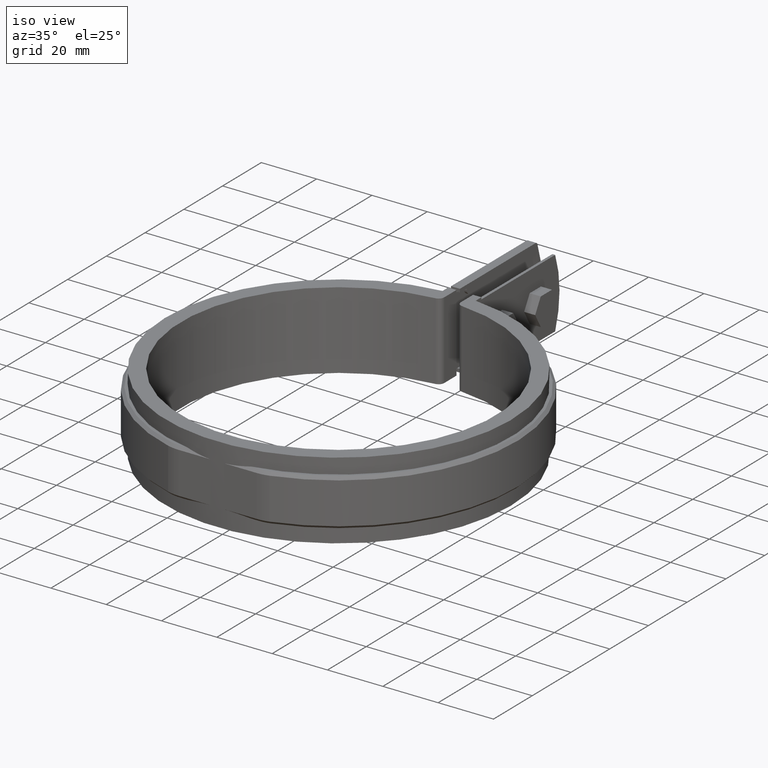
[diagram: clean part render]
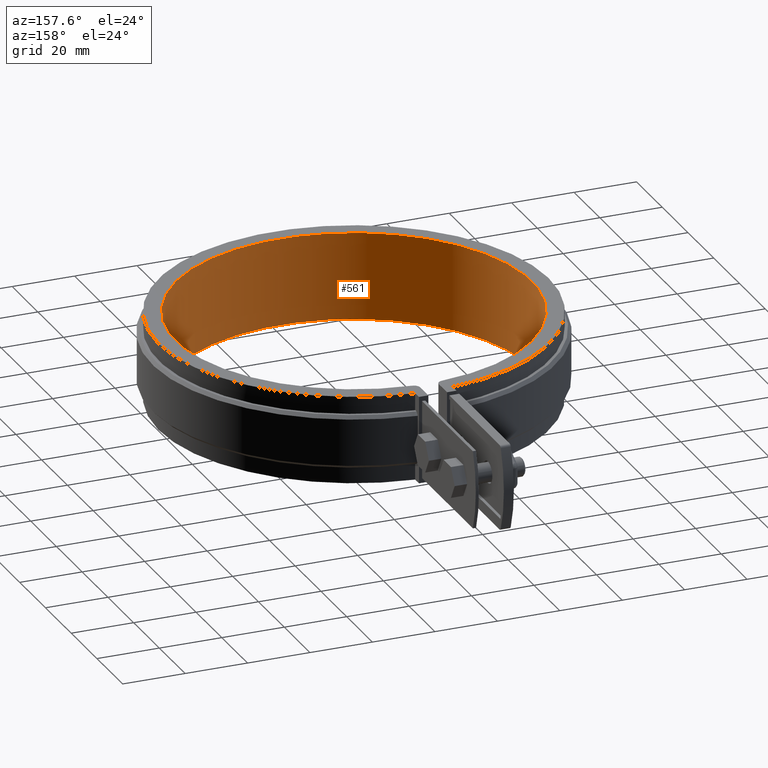
[diagram: tour spotlight — one face highlighted and labeled with its STEP entity id]
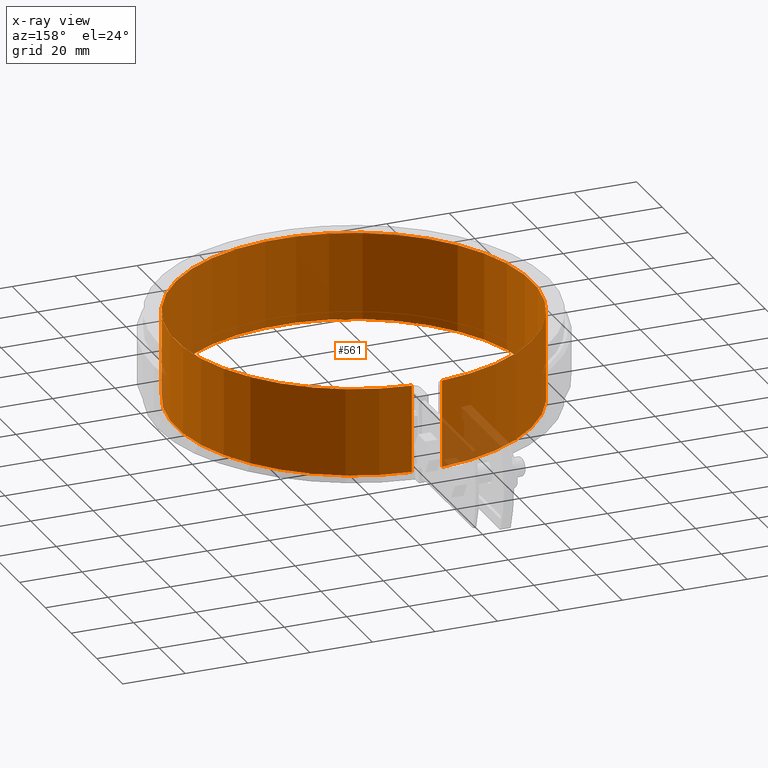
[diagram: x-ray of the same camera — body ghosted, this tour face saturated]
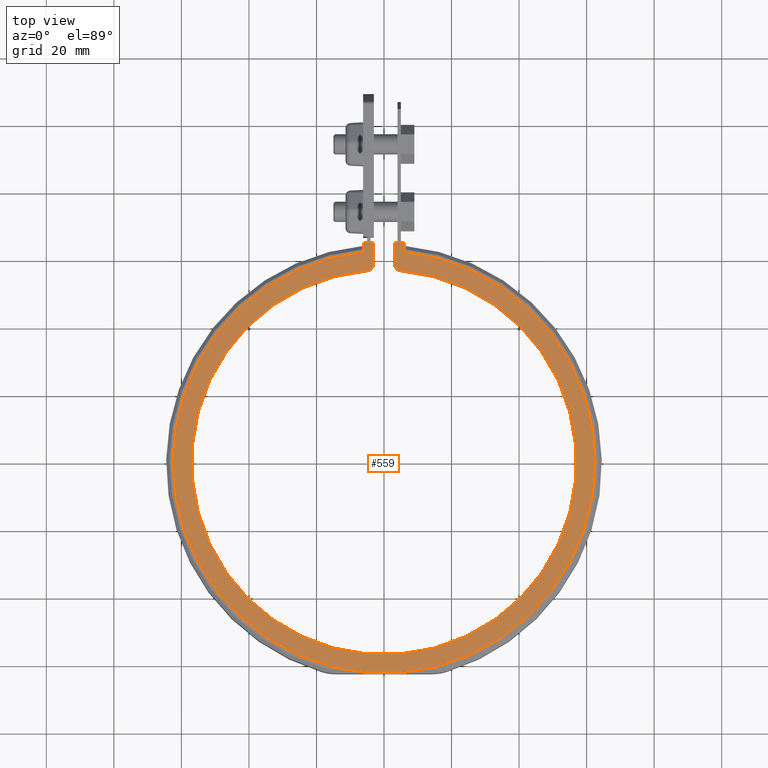
[diagram: tour spotlight — one face highlighted and labeled with its STEP entity id]
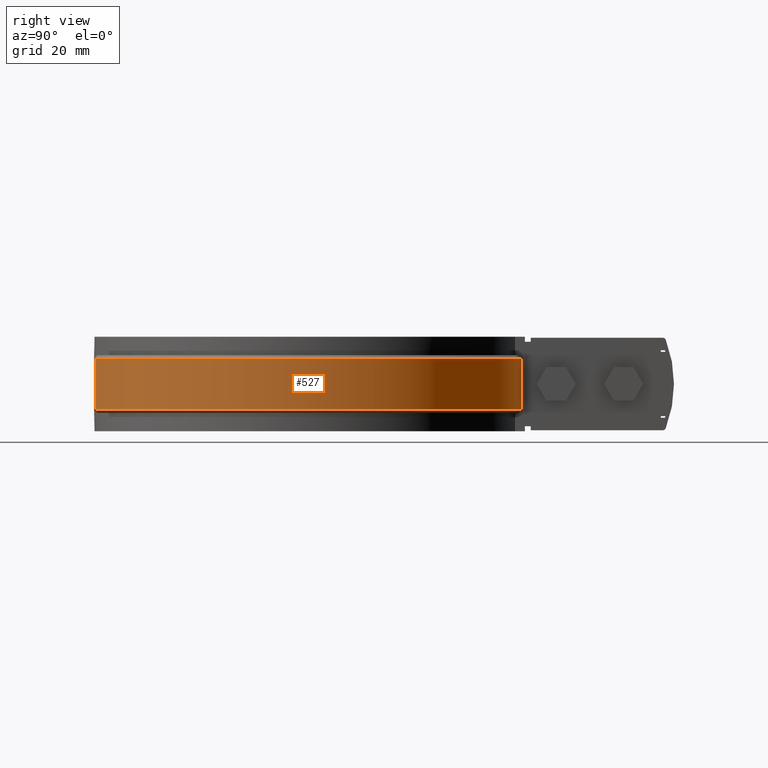
[diagram: tour spotlight — one face highlighted and labeled with its STEP entity id]
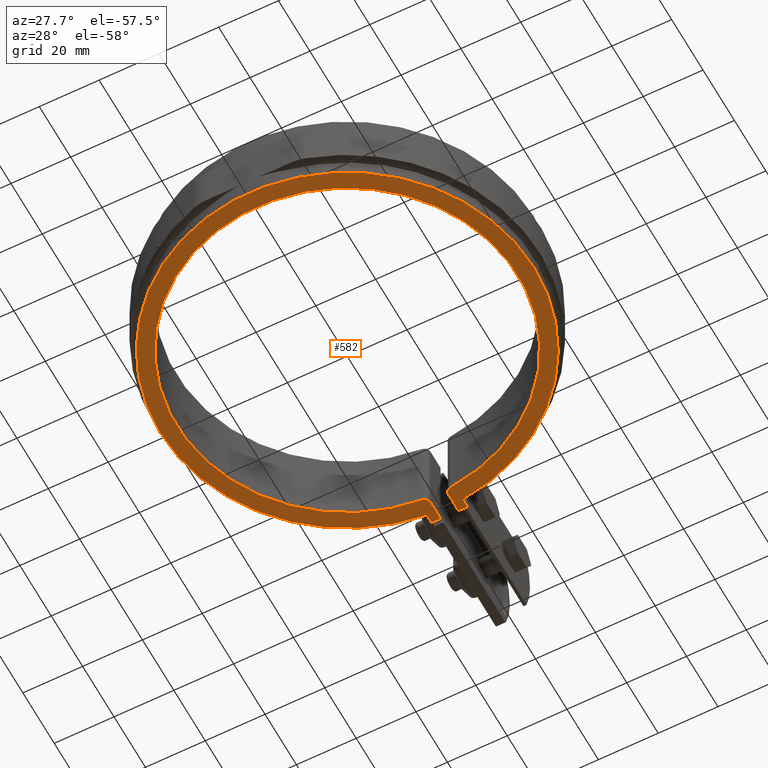
[diagram: tour spotlight — one face highlighted and labeled with its STEP entity id]
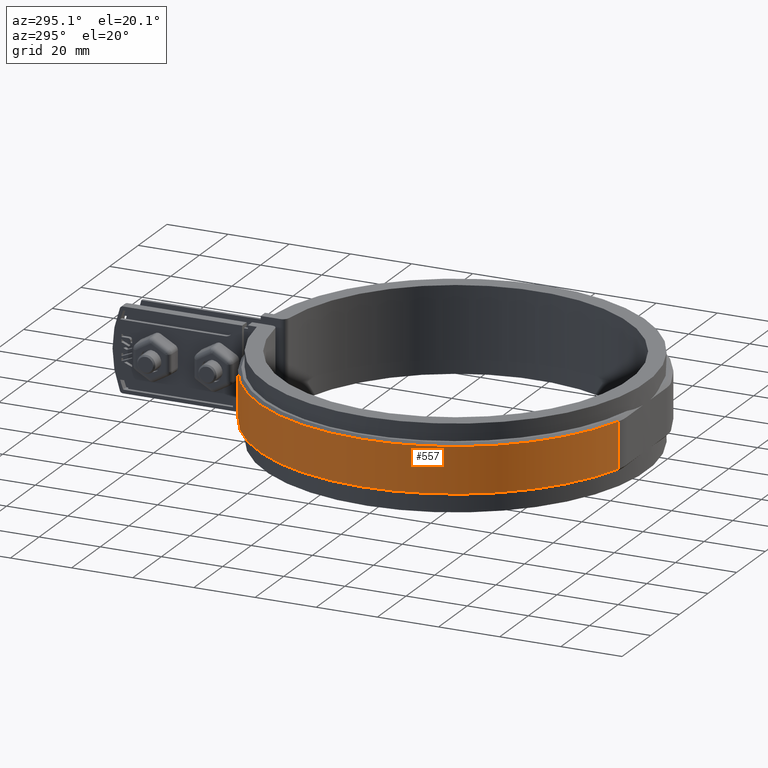
[diagram: tour spotlight — one face highlighted and labeled with its STEP entity id]
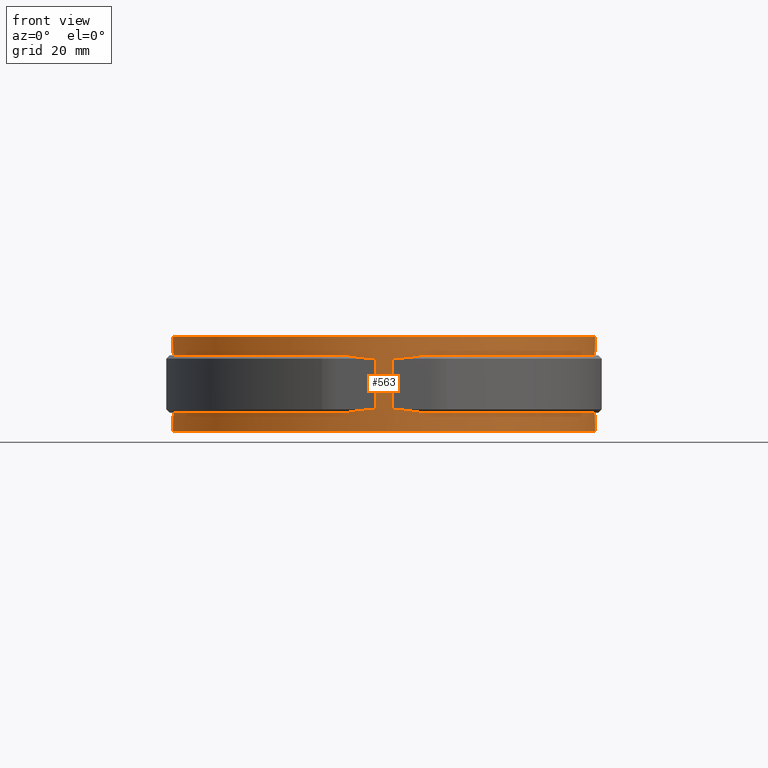
[diagram: tour spotlight — one face highlighted and labeled with its STEP entity id]
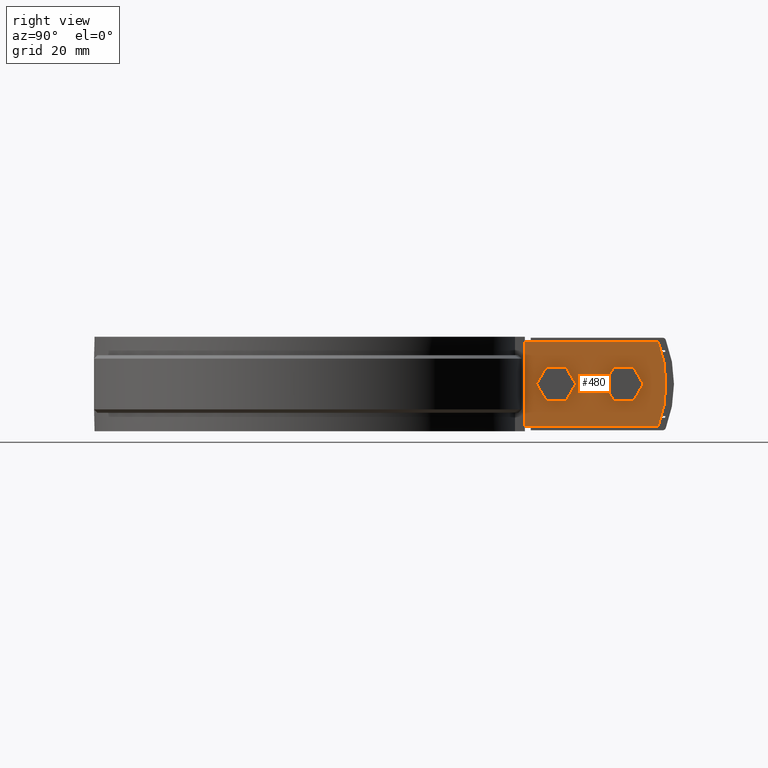
[diagram: tour spotlight — one face highlighted and labeled with its STEP entity id]
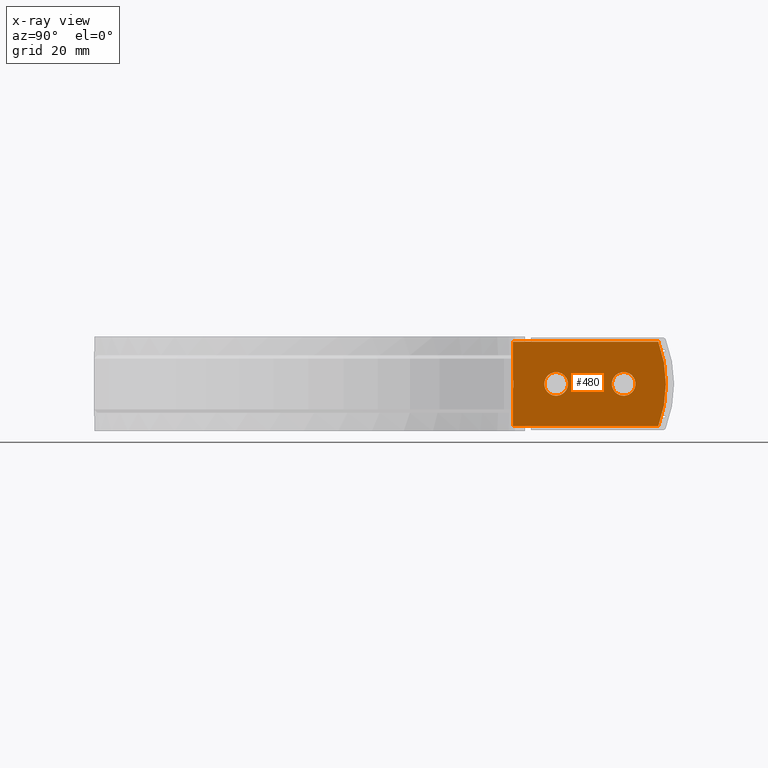
[diagram: x-ray of the same camera — body ghosted, this tour face saturated]
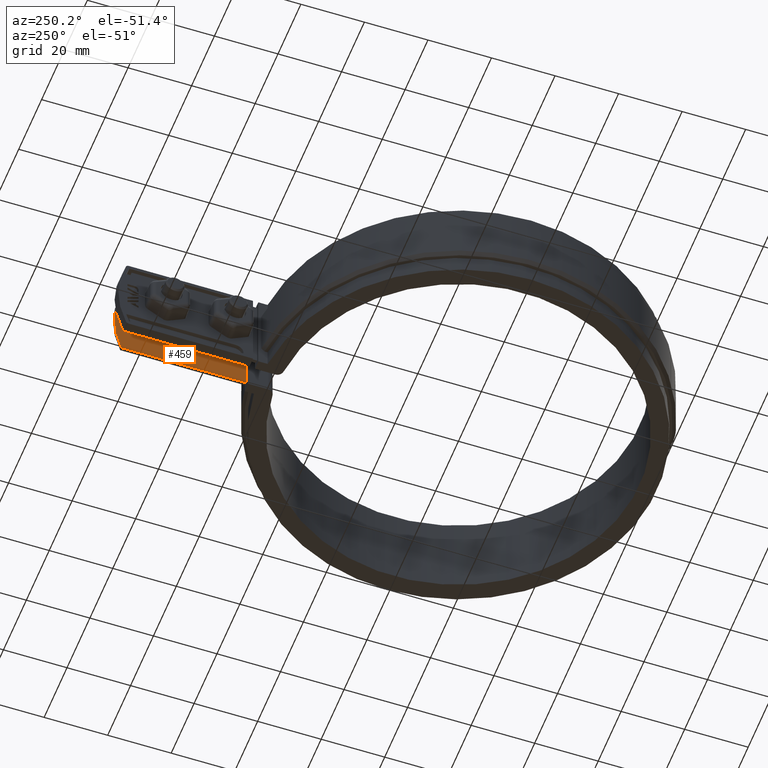
[diagram: tour spotlight — one face highlighted and labeled with its STEP entity id]
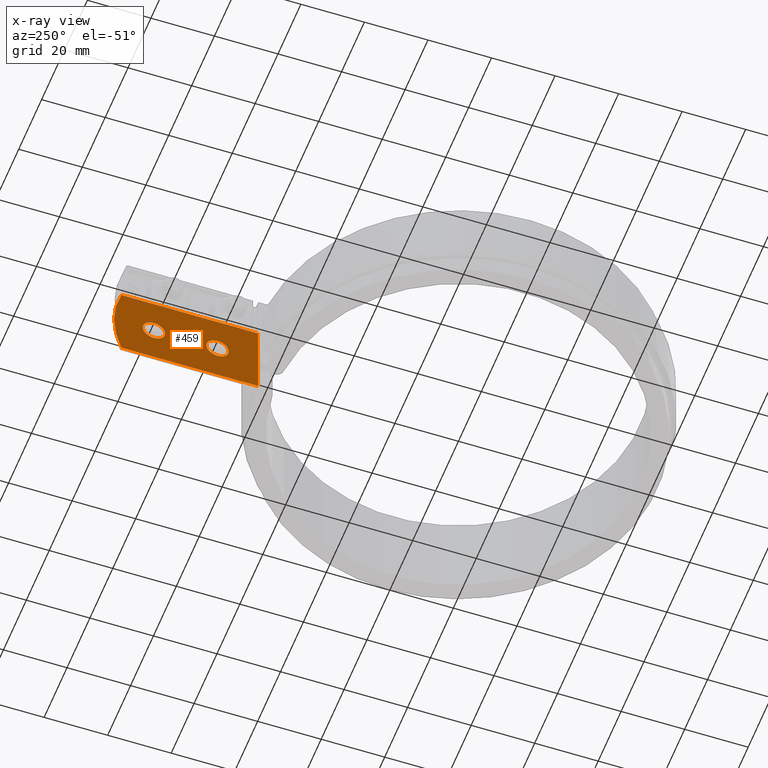
[diagram: x-ray of the same camera — body ghosted, this tour face saturated]
A machine part: a face-by-face anatomy tour. The part has 355 B-rep faces; the first image is the clean iso view, then the 8 largest visible faces are spotlighted one at a time (largest first), each with its STEP entity span.

Face 1 — auxiliary view, entity #561. An x-ray twin of the same camera follows (body ghosted, this face saturated) — the face is partly hidden behind the body. In plain terms, the highlighted cylindrical surface (partial cylindrical patch) has radius 57 mm, axis along (0, 0, 1).
Definition (entity closure, byte-faithful):
#561 = ADVANCED_FACE( '', ( #1035 ), #1036, .F. );
#1035 = FACE_OUTER_BOUND( '', #2279, .T. );
#1036 = CYLINDRICAL_SURFACE( '', #2280, 57.0000000000000 );
#2279 = EDGE_LOOP( '', ( #5008, #5009, #5010, #5011 ) );
#2280 = AXIS2_PLACEMENT_3D( '', #5012, #5013, #5014 );
#5008 = ORIENTED_EDGE( '', *, *, #7363, .F. );
#5009 = ORIENTED_EDGE( '', *, *, #7288, .F. );
#5010 = ORIENTED_EDGE( '', *, *, #7367, .T. );
#5011 = ORIENTED_EDGE( '', *, *, #7368, .T. );
#5012 = CARTESIAN_POINT( '', ( 2.60208521396521E-015, 3.46944695195361E-014, -14.0000000000000 ) );
#5013 = DIRECTION( '', ( 0.000000000000000, 0.000000000000000, 1.00000000000000 ) );
#5014 = DIRECTION( '', ( -0.0847457627118643, -0.996402607233835, 0.000000000000000 ) );
#7288 = EDGE_CURVE( '', #8428, #8426, #8430, .T. );
#7363 = EDGE_CURVE( '', #8426, #8544, #8545, .T. );
#7367 = EDGE_CURVE( '', #8428, #8549, #8550, .T. );
#7368 = EDGE_CURVE( '', #8549, #8544, #8551, .T. );
#8426 = VERTEX_POINT( '', #12017 );
#8428 = VERTEX_POINT( '', #12019 );
#8430 = LINE( '', #12021, #12022 );
#8544 = VERTEX_POINT( '', #12305 );
#8545 = CIRCLE( '', #12306, 57.0000000000000 );
#8549 = VERTEX_POINT( '', #12312 );
#8550 = CIRCLE( '', #12313, 57.0000000000000 );
#8551 = LINE( '', #12314, #12315 );
#12017 = CARTESIAN_POINT( '', ( 4.83050847457627, 56.7949486123287, 14.0000000000000 ) );
#12019 = CARTESIAN_POINT( '', ( 4.83050847457627, 56.7949486123287, -14.0000000000000 ) );
#12021 = CARTESIAN_POINT( '', ( 4.83050847457626, 56.7949486123287, -14.0000000000000 ) );
#12022 = VECTOR( '', #14166, 1000.00000000000 );
#12305 = CARTESIAN_POINT( '', ( -4.83050847457620, 56.7949486123287, 14.0000000000000 ) );
#12306 = AXIS2_PLACEMENT_3D( '', #14249, #14250, #14251 );
#12312 = CARTESIAN_POINT( '', ( -4.83050847457620, 56.7949486123287, -14.0000000000000 ) );
#12313 = AXIS2_PLACEMENT_3D( '', #14257, #14258, #14259 );
#12314 = CARTESIAN_POINT( '', ( -4.83050847457618, 56.7949486123287, -14.0000000000000 ) );
#12315 = VECTOR( '', #14260, 1000.00000000000 );
#14166 = DIRECTION( '', ( 0.000000000000000, 0.000000000000000, 1.00000000000000 ) );
#14249 = CARTESIAN_POINT( '', ( 2.60208521396521E-015, 3.46944695195361E-014, 14.0000000000000 ) );
#14250 = DIRECTION( '', ( 0.000000000000000, 0.000000000000000, -1.00000000000000 ) );
#14251 = DIRECTION( '', ( -1.00000000000000, 0.000000000000000, 0.000000000000000 ) );
#14257 = CARTESIAN_POINT( '', ( 2.60208521396521E-015, 3.46944695195361E-014, -14.0000000000000 ) );
#14258 = DIRECTION( '', ( 0.000000000000000, 0.000000000000000, -1.00000000000000 ) );
#14259 = DIRECTION( '', ( -1.00000000000000, 0.000000000000000, 0.000000000000000 ) );
#14260 = DIRECTION( '', ( 0.000000000000000, 0.000000000000000, 1.00000000000000 ) );

Face 2 — top view, entity #559. In plain terms, the highlighted planar face has unit normal (0, 0, -1).
Definition (entity closure, byte-faithful):
#559 = ADVANCED_FACE( '', ( #1031 ), #1032, .F. );
#1031 = FACE_OUTER_BOUND( '', #2275, .T. );
#1032 = PLANE( '', #2276 );
#2275 = EDGE_LOOP( '', ( #4988, #4989, #4990, #4991, #4992, #4993, #4994, #4995, #4996, #4997 ) );
#2276 = AXIS2_PLACEMENT_3D( '', #4998, #4999, #5000 );
#4988 = ORIENTED_EDGE( '', *, *, #7358, .T. );
#4989 = ORIENTED_EDGE( '', *, *, #7310, .T. );
#4990 = ORIENTED_EDGE( '', *, *, #7359, .T. );
#4991 = ORIENTED_EDGE( '', *, *, #7360, .T. );
#4992 = ORIENTED_EDGE( '', *, *, #7361, .T. );
#4993 = ORIENTED_EDGE( '', *, *, #7362, .T. );
#4994 = ORIENTED_EDGE( '', *, *, #7242, .T. );
#4995 = ORIENTED_EDGE( '', *, *, #7286, .T. );
#4996 = ORIENTED_EDGE( '', *, *, #7363, .T. );
#4997 = ORIENTED_EDGE( '', *, *, #7364, .T. );
#4998 = CARTESIAN_POINT( '', ( 5.23473201317391, 60.6634495591627, 14.0000000000000 ) );
#4999 = DIRECTION( '', ( 0.000000000000000, 0.000000000000000, -1.00000000000000 ) );
#5000 = DIRECTION( '', ( 0.000000000000000, -1.00000000000000, 0.000000000000000 ) );
#7242 = EDGE_CURVE( '', #8341, #8342, #8343, .F. );
#7286 = EDGE_CURVE( '', #8342, #8426, #8427, .F. );
#7310 = EDGE_CURVE( '', #8464, #8465, #8466, .F. );
#7358 = EDGE_CURVE( '', #8535, #8464, #8536, .F. );
#7359 = EDGE_CURVE( '', #8465, #8537, #8538, .F. );
#7360 = EDGE_CURVE( '', #8537, #8539, #8540, .F. );
#7361 = EDGE_CURVE( '', #8539, #8541, #8542, .F. );
#7362 = EDGE_CURVE( '', #8541, #8341, #8543, .F. );
#7363 = EDGE_CURVE( '', #8426, #8544, #8545, .T. );
#7364 = EDGE_CURVE( '', #8544, #8535, #8546, .F. );
#8341 = VERTEX_POINT( '', #11488 );
#8342 = VERTEX_POINT( '', #11489 );
#8343 = LINE( '', #11490, #11491 );
#8426 = VERTEX_POINT( '', #12017 );
#8427 = CIRCLE( '', #12018, 2.00000000000000 );
#8464 = VERTEX_POINT( '', #12108 );
#8465 = VERTEX_POINT( '', #12109 );
#8466 = LINE( '', #12110, #12111 );
#8535 = VERTEX_POINT( '', #12292 );
#8536 = LINE( '', #12293, #12294 );
#8537 = VERTEX_POINT( '', #12295 );
#8538 = LINE( '', #12296, #12297 );
#8539 = VERTEX_POINT( '', #12298 );
#8540 = CIRCLE( '', #12299, 62.5000000000000 );
#8541 = VERTEX_POINT( '', #12300 );
#8542 = LINE( '', #12301, #12302 );
#8543 = LINE( '', #12303, #12304 );
#8544 = VERTEX_POINT( '', #12305 );
#8545 = CIRCLE( '', #12306, 57.0000000000000 );
#8546 = CIRCLE( '', #12307, 2.00000000000000 );
#11488 = CARTESIAN_POINT( '', ( 3.00000000000000, 65.1500000000000, 14.0000000000000 ) );
#11489 = CARTESIAN_POINT( '', ( 3.00000000000000, 58.7877538267963, 14.0000000000000 ) );
#11490 = CARTESIAN_POINT( '', ( 3.00000000000000, 60.6634495591627, 14.0000000000000 ) );
#11491 = VECTOR( '', #14110, 1000.00000000000 );
#12017 = CARTESIAN_POINT( '', ( 4.83050847457627, 56.7949486123287, 14.0000000000000 ) );
#12018 = AXIS2_PLACEMENT_3D( '', #14160, #14161, #14162 );
#12108 = CARTESIAN_POINT( '', ( -2.99999999999995, 65.1500000000000, 14.0000000000000 ) );
#12109 = CARTESIAN_POINT( '', ( -6.00000000000000, 65.1500000000000, 14.0000000000000 ) );
#12110 = CARTESIAN_POINT( '', ( 5.23473201317391, 65.1500000000000, 14.0000000000000 ) );
#12111 = VECTOR( '', #14185, 1000.00000000000 );
#12292 = CARTESIAN_POINT( '', ( -2.99999999999995, 58.7877538267963, 14.0000000000000 ) );
#12293 = CARTESIAN_POINT( '', ( -2.99999999999995, 60.6634495591627, 14.0000000000000 ) );
#12294 = VECTOR( '', #14242, 1000.00000000000 );
#12295 = CARTESIAN_POINT( '', ( -6.00000000000000, 62.2113333726259, 14.0000000000000 ) );
#12296 = CARTESIAN_POINT( '', ( -6.00000000000000, 60.6634495591627, 14.0000000000000 ) );
#12297 = VECTOR( '', #14243, 1000.00000000000 );
#12298 = CARTESIAN_POINT( '', ( 6.00000000000000, 62.2113333726259, 14.0000000000000 ) );
#12299 = AXIS2_PLACEMENT_3D( '', #14244, #14245, #14246 );
#12300 = CARTESIAN_POINT( '', ( 6.00000000000000, 65.1500000000000, 14.0000000000000 ) );
#12301 = CARTESIAN_POINT( '', ( 6.00000000000000, 60.6634495591627, 14.0000000000000 ) );
#12302 = VECTOR( '', #14247, 1000.00000000000 );
#12303 = CARTESIAN_POINT( '', ( 5.23473201317391, 65.1500000000000, 14.0000000000000 ) );
#12304 = VECTOR( '', #14248, 1000.00000000000 );
#12305 = CARTESIAN_POINT( '', ( -4.83050847457620, 56.7949486123287, 14.0000000000000 ) );
#12306 = AXIS2_PLACEMENT_3D( '', #14249, #14250, #14251 );
#12307 = AXIS2_PLACEMENT_3D( '', #14252, #14253, #14254 );
#14110 = DIRECTION( '', ( 6.93889390390723E-017, 1.00000000000000, 0.000000000000000 ) );
#14160 = CARTESIAN_POINT( '', ( 5.00000000000000, 58.7877538267963, 14.0000000000000 ) );
#14161 = DIRECTION( '', ( 0.000000000000000, 0.000000000000000, -1.00000000000000 ) );
#14162 = DIRECTION( '', ( -1.00000000000000, 0.000000000000000, 0.000000000000000 ) );
#14185 = DIRECTION( '', ( 1.00000000000000, 0.000000000000000, 0.000000000000000 ) );
#14242 = DIRECTION( '', ( -6.93889390390723E-017, -1.00000000000000, 0.000000000000000 ) );
#14243 = DIRECTION( '', ( 5.55111512312578E-017, 1.00000000000000, 0.000000000000000 ) );
#14244 = CARTESIAN_POINT( '', ( -8.67361737988404E-016, -6.93889390390723E-015, 14.0000000000000 ) );
#14245 = DIRECTION( '', ( 0.000000000000000, 0.000000000000000, -1.00000000000000 ) );
#14246 = DIRECTION( '', ( -1.00000000000000, 0.000000000000000, 0.000000000000000 ) );
#14247 = DIRECTION( '', ( -5.55111512312578E-017, -1.00000000000000, 0.000000000000000 ) );
#14248 = DIRECTION( '', ( 1.00000000000000, 0.000000000000000, 0.000000000000000 ) );
#14249 = CARTESIAN_POINT( '', ( 2.60208521396521E-015, 3.46944695195361E-014, 14.0000000000000 ) );
#14250 = DIRECTION( '', ( 0.000000000000000, 0.000000000000000, -1.00000000000000 ) );
#14251 = DIRECTION( '', ( -1.00000000000000, 0.000000000000000, 0.000000000000000 ) );
#14252 = CARTESIAN_POINT( '', ( -4.99999999999995, 58.7877538267963, 14.0000000000000 ) );
#14253 = DIRECTION( '', ( 0.000000000000000, 0.000000000000000, -1.00000000000000 ) );
#14254 = DIRECTION( '', ( -1.00000000000000, 0.000000000000000, 0.000000000000000 ) );

Face 3 — right view, entity #527. In plain terms, the highlighted cylindrical surface (partial cylindrical patch) has radius 64.5 mm, axis along (0, 0, 1).
Definition (entity closure, byte-faithful):
#527 = ADVANCED_FACE( '', ( #965 ), #966, .T. );
#965 = FACE_OUTER_BOUND( '', #2008, .T. );
#966 = CYLINDRICAL_SURFACE( '', #2009, 64.5000000000000 );
#2008 = EDGE_LOOP( '', ( #4689, #4690, #4691, #4692 ) );
#2009 = AXIS2_PLACEMENT_3D( '', #4693, #4694, #4695 );
#4689 = ORIENTED_EDGE( '', *, *, #7251, .T. );
#4690 = ORIENTED_EDGE( '', *, *, #7252, .T. );
#4691 = ORIENTED_EDGE( '', *, *, #7253, .F. );
#4692 = ORIENTED_EDGE( '', *, *, #7254, .T. );
#4693 = CARTESIAN_POINT( '', ( 8.67361737988404E-016, 1.38777878078145E-014, -8.50000000000000 ) );
#4694 = DIRECTION( '', ( 0.000000000000000, 0.000000000000000, 1.00000000000000 ) );
#4695 = DIRECTION( '', ( 0.0775193798449611, 0.996990845368428, 0.000000000000000 ) );
#7251 = EDGE_CURVE( '', #8359, #8360, #8361, .F. );
#7252 = EDGE_CURVE( '', #8360, #8362, #8363, .T. );
#7253 = EDGE_CURVE( '', #8364, #8362, #8365, .T. );
#7254 = EDGE_CURVE( '', #8364, #8359, #8366, .T. );
#8359 = VERTEX_POINT( '', #11512 );
#8360 = VERTEX_POINT( '', #11513 );
#8361 = LINE( '', #11514, #11515 );
#8362 = VERTEX_POINT( '', #11516 );
#8363 = CIRCLE( '', #11517, 64.5000000000000 );
#8364 = VERTEX_POINT( '', #11518 );
#8365 = LINE( '', #11519, #11520 );
#8366 = CIRCLE( '', #11521, 64.5000000000000 );
#11512 = CARTESIAN_POINT( '', ( 6.00000000000000, 64.2203238858230, -7.50000000000000 ) );
#11513 = CARTESIAN_POINT( '', ( 6.00000000000000, 64.2203238858230, 7.50000000000000 ) );
#11514 = CARTESIAN_POINT( '', ( 6.00000000000000, 64.2203238858230, -8.50000000000000 ) );
#11515 = VECTOR( '', #14125, 1000.00000000000 );
#11516 = CARTESIAN_POINT( '', ( 18.3698391239513, -61.8287878787879, 7.50000000000000 ) );
#11517 = AXIS2_PLACEMENT_3D( '', #14126, #14127, #14128 );
#11518 = CARTESIAN_POINT( '', ( 18.3698391239513, -61.8287878787879, -7.49999999999998 ) );
#11519 = CARTESIAN_POINT( '', ( 18.3698391239513, -61.8287878787879, -8.50000000000000 ) );
#11520 = VECTOR( '', #14129, 1000.00000000000 );
#11521 = AXIS2_PLACEMENT_3D( '', #14130, #14131, #14132 );
#14125 = DIRECTION( '', ( 0.000000000000000, 0.000000000000000, -1.00000000000000 ) );
#14126 = CARTESIAN_POINT( '', ( 8.67361737988404E-016, 1.38777878078145E-014, 7.50000000000000 ) );
#14127 = DIRECTION( '', ( 0.000000000000000, 0.000000000000000, -1.00000000000000 ) );
#14128 = DIRECTION( '', ( -1.00000000000000, 0.000000000000000, 0.000000000000000 ) );
#14129 = DIRECTION( '', ( 0.000000000000000, 0.000000000000000, 1.00000000000000 ) );
#14130 = CARTESIAN_POINT( '', ( 8.67361737988404E-016, 1.38777878078145E-014, -7.50000000000000 ) );
#14131 = DIRECTION( '', ( 0.000000000000000, 0.000000000000000, 1.00000000000000 ) );
#14132 = DIRECTION( '', ( 1.00000000000000, 0.000000000000000, 0.000000000000000 ) );

Face 4 — auxiliary view, entity #582. In plain terms, the highlighted planar face has unit normal (0, 0, -1).
Definition (entity closure, byte-faithful):
#582 = ADVANCED_FACE( '', ( #1077 ), #1078, .T. );
#1077 = FACE_OUTER_BOUND( '', #2396, .T. );
#1078 = PLANE( '', #2397 );
#2396 = EDGE_LOOP( '', ( #5186, #5187, #5188, #5189, #5190, #5191, #5192, #5193, #5194, #5195 ) );
#2397 = AXIS2_PLACEMENT_3D( '', #5196, #5197, #5198 );
#5186 = ORIENTED_EDGE( '', *, *, #7244, .F. );
#5187 = ORIENTED_EDGE( '', *, *, #7409, .F. );
#5188 = ORIENTED_EDGE( '', *, *, #7400, .F. );
#5189 = ORIENTED_EDGE( '', *, *, #7378, .F. );
#5190 = ORIENTED_EDGE( '', *, *, #7397, .F. );
#5191 = ORIENTED_EDGE( '', *, *, #7312, .F. );
#5192 = ORIENTED_EDGE( '', *, *, #7406, .F. );
#5193 = ORIENTED_EDGE( '', *, *, #7404, .F. );
#5194 = ORIENTED_EDGE( '', *, *, #7367, .F. );
#5195 = ORIENTED_EDGE( '', *, *, #7287, .F. );
#5196 = CARTESIAN_POINT( '', ( 5.23473201317391, 60.6634495591627, -14.0000000000000 ) );
#5197 = DIRECTION( '', ( 0.000000000000000, 0.000000000000000, -1.00000000000000 ) );
#5198 = DIRECTION( '', ( 0.000000000000000, -1.00000000000000, 0.000000000000000 ) );
#7244 = EDGE_CURVE( '', #8344, #8346, #8347, .T. );
#7287 = EDGE_CURVE( '', #8346, #8428, #8429, .F. );
#7312 = EDGE_CURVE( '', #8467, #8469, #8470, .T. );
#7367 = EDGE_CURVE( '', #8428, #8549, #8550, .T. );
#7378 = EDGE_CURVE( '', #8564, #8553, #8566, .F. );
#7397 = EDGE_CURVE( '', #8469, #8564, #8594, .T. );
#7400 = EDGE_CURVE( '', #8553, #8598, #8599, .T. );
#7404 = EDGE_CURVE( '', #8549, #8603, #8604, .F. );
#7406 = EDGE_CURVE( '', #8603, #8467, #8606, .T. );
#7409 = EDGE_CURVE( '', #8598, #8344, #8609, .T. );
#8344 = VERTEX_POINT( '', #11492 );
#8346 = VERTEX_POINT( '', #11495 );
#8347 = LINE( '', #11496, #11497 );
#8428 = VERTEX_POINT( '', #12019 );
#8429 = CIRCLE( '', #12020, 2.00000000000000 );
#8467 = VERTEX_POINT( '', #12112 );
#8469 = VERTEX_POINT( '', #12115 );
#8470 = LINE( '', #12116, #12117 );
#8549 = VERTEX_POINT( '', #12312 );
#8550 = CIRCLE( '', #12313, 57.0000000000000 );
#8553 = VERTEX_POINT( '', #12317 );
#8564 = VERTEX_POINT( '', #12332 );
#8566 = CIRCLE( '', #12335, 62.5000000000000 );
#8594 = LINE( '', #12427, #12428 );
#8598 = VERTEX_POINT( '', #12436 );
#8599 = LINE( '', #12437, #12438 );
#8603 = VERTEX_POINT( '', #12447 );
#8604 = CIRCLE( '', #12448, 2.00000000000000 );
#8606 = LINE( '', #12451, #12452 );
#8609 = LINE( '', #12457, #12458 );
#11492 = CARTESIAN_POINT( '', ( 3.00000000000000, 65.1500000000000, -14.0000000000000 ) );
#11495 = CARTESIAN_POINT( '', ( 3.00000000000000, 58.7877538267963, -14.0000000000000 ) );
#11496 = CARTESIAN_POINT( '', ( 3.00000000000000, 65.1500000000000, -14.0000000000000 ) );
#11497 = VECTOR( '', #14112, 1000.00000000000 );
#12019 = CARTESIAN_POINT( '', ( 4.83050847457627, 56.7949486123287, -14.0000000000000 ) );
#12020 = AXIS2_PLACEMENT_3D( '', #14163, #14164, #14165 );
#12112 = CARTESIAN_POINT( '', ( -2.99999999999995, 65.1500000000000, -14.0000000000000 ) );
#12115 = CARTESIAN_POINT( '', ( -6.00000000000000, 65.1500000000000, -14.0000000000000 ) );
#12116 = CARTESIAN_POINT( '', ( -4.99999999999999, 65.1500000000000, -14.0000000000000 ) );
#12117 = VECTOR( '', #14187, 1000.00000000000 );
#12312 = CARTESIAN_POINT( '', ( -4.83050847457620, 56.7949486123287, -14.0000000000000 ) );
#12313 = AXIS2_PLACEMENT_3D( '', #14257, #14258, #14259 );
#12317 = CARTESIAN_POINT( '', ( 6.00000000000000, 62.2113333726259, -14.0000000000000 ) );
#12332 = CARTESIAN_POINT( '', ( -6.00000000000000, 62.2113333726259, -14.0000000000000 ) );
#12335 = AXIS2_PLACEMENT_3D( '', #14278, #14279, #14280 );
#12427 = CARTESIAN_POINT( '', ( -6.00000000000000, 65.1500000000000, -14.0000000000000 ) );
#12428 = VECTOR( '', #14306, 1000.00000000000 );
#12436 = CARTESIAN_POINT( '', ( 6.00000000000000, 65.1500000000000, -14.0000000000000 ) );
#12437 = CARTESIAN_POINT( '', ( 6.00000000000000, 62.2113333726259, -14.0000000000000 ) );
#12438 = VECTOR( '', #14308, 1000.00000000000 );
#12447 = CARTESIAN_POINT( '', ( -2.99999999999995, 58.7877538267963, -14.0000000000000 ) );
#12448 = AXIS2_PLACEMENT_3D( '', #14311, #14312, #14313 );
#12451 = CARTESIAN_POINT( '', ( -2.99999999999995, 58.7877538267963, -14.0000000000000 ) );
#12452 = VECTOR( '', #14315, 1000.00000000000 );
#12457 = CARTESIAN_POINT( '', ( 6.00000000000003, 65.1500000000000, -14.0000000000000 ) );
#12458 = VECTOR( '', #14318, 1000.00000000000 );
#14112 = DIRECTION( '', ( -6.93889390390723E-017, -1.00000000000000, 0.000000000000000 ) );
#14163 = CARTESIAN_POINT( '', ( 5.00000000000000, 58.7877538267963, -14.0000000000000 ) );
#14164 = DIRECTION( '', ( 0.000000000000000, 0.000000000000000, -1.00000000000000 ) );
#14165 = DIRECTION( '', ( -1.00000000000000, 0.000000000000000, 0.000000000000000 ) );
#14187 = DIRECTION( '', ( -1.00000000000000, 0.000000000000000, 0.000000000000000 ) );
#14257 = CARTESIAN_POINT( '', ( 2.60208521396521E-015, 3.46944695195361E-014, -14.0000000000000 ) );
#14258 = DIRECTION( '', ( 0.000000000000000, 0.000000000000000, -1.00000000000000 ) );
#14259 = DIRECTION( '', ( -1.00000000000000, 0.000000000000000, 0.000000000000000 ) );
#14278 = CARTESIAN_POINT( '', ( -8.67361737988404E-016, -6.93889390390723E-015, -14.0000000000000 ) );
#14279 = DIRECTION( '', ( 0.000000000000000, 0.000000000000000, -1.00000000000000 ) );
#14280 = DIRECTION( '', ( -1.00000000000000, 0.000000000000000, 0.000000000000000 ) );
#14306 = DIRECTION( '', ( -5.55111512312578E-017, -1.00000000000000, 0.000000000000000 ) );
#14308 = DIRECTION( '', ( 5.55111512312578E-017, 1.00000000000000, 0.000000000000000 ) );
#14311 = CARTESIAN_POINT( '', ( -4.99999999999995, 58.7877538267963, -14.0000000000000 ) );
#14312 = DIRECTION( '', ( 0.000000000000000, 0.000000000000000, -1.00000000000000 ) );
#14313 = DIRECTION( '', ( -1.00000000000000, 0.000000000000000, 0.000000000000000 ) );
#14315 = DIRECTION( '', ( 6.93889390390723E-017, 1.00000000000000, 0.000000000000000 ) );
#14318 = DIRECTION( '', ( -1.00000000000000, 0.000000000000000, 0.000000000000000 ) );

Face 5 — auxiliary view, entity #557. In plain terms, the highlighted cylindrical surface (partial cylindrical patch) has radius 64.5 mm, axis along (0, 0, 1).
Definition (entity closure, byte-faithful):
#557 = ADVANCED_FACE( '', ( #1027 ), #1028, .T. );
#1027 = FACE_OUTER_BOUND( '', #2271, .T. );
#1028 = CYLINDRICAL_SURFACE( '', #2272, 64.5000000000000 );
#2271 = EDGE_LOOP( '', ( #4974, #4975, #4976, #4977 ) );
#2272 = AXIS2_PLACEMENT_3D( '', #4978, #4979, #4980 );
#4974 = ORIENTED_EDGE( '', *, *, #7356, .T. );
#4975 = ORIENTED_EDGE( '', *, *, #7355, .T. );
#4976 = ORIENTED_EDGE( '', *, *, #7357, .T. );
#4977 = ORIENTED_EDGE( '', *, *, #7317, .T. );
#4978 = CARTESIAN_POINT( '', ( -8.67361737988404E-016, 1.38777878078145E-014, -8.50000000000000 ) );
#4979 = DIRECTION( '', ( 0.000000000000000, 0.000000000000000, 1.00000000000000 ) );
#4980 = DIRECTION( '', ( -0.0775193798449611, 0.996990845368428, 0.000000000000000 ) );
#7317 = EDGE_CURVE( '', #8446, #8474, #8477, .T. );
#7355 = EDGE_CURVE( '', #8530, #8523, #8532, .T. );
#7356 = EDGE_CURVE( '', #8474, #8530, #8533, .T. );
#7357 = EDGE_CURVE( '', #8523, #8446, #8534, .T. );
#8446 = VERTEX_POINT( '', #12060 );
#8474 = VERTEX_POINT( '', #12124 );
#8477 = CIRCLE( '', #12130, 64.5000000000000 );
#8523 = VERTEX_POINT( '', #12272 );
#8530 = VERTEX_POINT( '', #12282 );
#8532 = CIRCLE( '', #12287, 64.5000000000000 );
#8533 = LINE( '', #12288, #12289 );
#8534 = LINE( '', #12290, #12291 );
#12060 = CARTESIAN_POINT( '', ( -18.3698391239513, -61.8287878787879, 7.49999999999998 ) );
#12124 = CARTESIAN_POINT( '', ( -6.00000000000000, 64.2203238858230, 7.50000000000000 ) );
#12130 = AXIS2_PLACEMENT_3D( '', #14191, #14192, #14193 );
#12272 = CARTESIAN_POINT( '', ( -18.3698391239513, -61.8287878787879, -7.50000000000000 ) );
#12282 = CARTESIAN_POINT( '', ( -6.00000000000000, 64.2203238858230, -7.50000000000000 ) );
#12287 = AXIS2_PLACEMENT_3D( '', #14237, #14238, #14239 );
#12288 = CARTESIAN_POINT( '', ( -6.00000000000000, 64.2203238858230, -8.50000000000000 ) );
#12289 = VECTOR( '', #14240, 1000.00000000000 );
#12290 = CARTESIAN_POINT( '', ( -18.3698391239513, -61.8287878787879, -8.50000000000000 ) );
#12291 = VECTOR( '', #14241, 1000.00000000000 );
#14191 = CARTESIAN_POINT( '', ( -8.67361737988404E-016, 1.38777878078145E-014, 7.50000000000000 ) );
#14192 = DIRECTION( '', ( 0.000000000000000, 0.000000000000000, -1.00000000000000 ) );
#14193 = DIRECTION( '', ( -1.00000000000000, 0.000000000000000, 0.000000000000000 ) );
#14237 = CARTESIAN_POINT( '', ( -8.67361737988404E-016, 1.38777878078145E-014, -7.50000000000000 ) );
#14238 = DIRECTION( '', ( 0.000000000000000, 0.000000000000000, 1.00000000000000 ) );
#14239 = DIRECTION( '', ( 1.00000000000000, 0.000000000000000, 0.000000000000000 ) );
#14240 = DIRECTION( '', ( 0.000000000000000, 0.000000000000000, -1.00000000000000 ) );
#14241 = DIRECTION( '', ( 0.000000000000000, 0.000000000000000, 1.00000000000000 ) );

Face 6 — front view, entity #563. In plain terms, the highlighted cylindrical surface (partial cylindrical patch) has radius 62.5 mm, axis along (0, 0, 1).
Definition (entity closure, byte-faithful):
#563 = ADVANCED_FACE( '', ( #1039 ), #1040, .T. );
#1039 = FACE_OUTER_BOUND( '', #2283, .T. );
#1040 = CYLINDRICAL_SURFACE( '', #2284, 62.5000000000000 );
#2283 = EDGE_LOOP( '', ( #5022, #5023, #5024, #5025, #5026, #5027, #5028, #5029, #5030, #5031, #5032, #5033, #5034, #5035, #5036, #5037 ) );
#2284 = AXIS2_PLACEMENT_3D( '', #5038, #5039, #5040 );
#5022 = ORIENTED_EDGE( '', *, *, #7370, .T. );
#5023 = ORIENTED_EDGE( '', *, *, #7371, .T. );
#5024 = ORIENTED_EDGE( '', *, *, #7206, .T. );
#5025 = ORIENTED_EDGE( '', *, *, #7209, .F. );
#5026 = ORIENTED_EDGE( '', *, *, #7332, .T. );
#5027 = ORIENTED_EDGE( '', *, *, #7372, .F. );
#5028 = ORIENTED_EDGE( '', *, *, #7373, .T. );
#5029 = ORIENTED_EDGE( '', *, *, #7360, .F. );
#5030 = ORIENTED_EDGE( '', *, *, #7374, .F. );
#5031 = ORIENTED_EDGE( '', *, *, #7347, .F. );
#5032 = ORIENTED_EDGE( '', *, *, #7375, .T. );
#5033 = ORIENTED_EDGE( '', *, *, #7376, .F. );
#5034 = ORIENTED_EDGE( '', *, *, #7352, .T. );
#5035 = ORIENTED_EDGE( '', *, *, #7246, .T. );
#5036 = ORIENTED_EDGE( '', *, *, #7377, .F. );
#5037 = ORIENTED_EDGE( '', *, *, #7378, .T. );
#5038 = CARTESIAN_POINT( '', ( -8.67361737988404E-016, -6.93889390390723E-015, -14.0000000000000 ) );
#5039 = DIRECTION( '', ( 0.000000000000000, 0.000000000000000, 1.00000000000000 ) );
#5040 = DIRECTION( '', ( -0.112903225806450, -0.993605989113641, 0.000000000000000 ) );
#7206 = EDGE_CURVE( '', #8273, #8271, #8274, .T. );
#7209 = EDGE_CURVE( '', #8276, #8271, #8278, .T. );
#7246 = EDGE_CURVE( '', #8349, #8350, #8351, .F. );
#7332 = EDGE_CURVE( '', #8276, #8497, #8499, .F. );
#7347 = EDGE_CURVE( '', #8518, #8520, #8521, .F. );
#7352 = EDGE_CURVE( '', #8527, #8349, #8528, .T. );
#7360 = EDGE_CURVE( '', #8537, #8539, #8540, .F. );
#7370 = EDGE_CURVE( '', #8553, #8554, #8555, .F. );
#7371 = EDGE_CURVE( '', #8554, #8273, #8556, .F. );
#7372 = EDGE_CURVE( '', #8557, #8497, #8558, .F. );
#7373 = EDGE_CURVE( '', #8557, #8539, #8559, .F. );
#7374 = EDGE_CURVE( '', #8520, #8537, #8560, .F. );
#7375 = EDGE_CURVE( '', #8518, #8561, #8562, .F. );
#7376 = EDGE_CURVE( '', #8527, #8561, #8563, .F. );
#7377 = EDGE_CURVE( '', #8564, #8350, #8565, .F. );
#7378 = EDGE_CURVE( '', #8564, #8553, #8566, .F. );
#8271 = VERTEX_POINT( '', #11360 );
#8273 = VERTEX_POINT( '', #11363 );
#8274 = ELLIPSE( '', #11364, 88.3883476483185, 62.5000000000000 );
#8276 = VERTEX_POINT( '', #11367 );
#8278 = LINE( '', #11370, #11371 );
#8349 = VERTEX_POINT( '', #11500 );
#8350 = VERTEX_POINT( '', #11501 );
#8351 = CIRCLE( '', #11502, 62.5000000000000 );
#8497 = VERTEX_POINT( '', #12197 );
#8499 = ELLIPSE( '', #12200, 88.3883476483184, 62.5000000000000 );
#8518 = VERTEX_POINT( '', #12265 );
#8520 = VERTEX_POINT( '', #12268 );
#8521 = CIRCLE( '', #12269, 62.5000000000000 );
#8527 = VERTEX_POINT( '', #12278 );
#8528 = ELLIPSE( '', #12279, 88.3883476483185, 62.5000000000000 );
#8537 = VERTEX_POINT( '', #12295 );
#8539 = VERTEX_POINT( '', #12298 );
#8540 = CIRCLE( '', #12299, 62.5000000000000 );
#8553 = VERTEX_POINT( '', #12317 );
#8554 = VERTEX_POINT( '', #12318 );
#8555 = LINE( '', #12319, #12320 );
#8556 = CIRCLE( '', #12321, 62.5000000000000 );
#8557 = VERTEX_POINT( '', #12322 );
#8558 = CIRCLE( '', #12323, 62.5000000000000 );
#8559 = LINE( '', #12324, #12325 );
#8560 = LINE( '', #12326, #12327 );
#8561 = VERTEX_POINT( '', #12328 );
#8562 = ELLIPSE( '', #12329, 88.3883476483184, 62.5000000000000 );
#8563 = LINE( '', #12330, #12331 );
#8564 = VERTEX_POINT( '', #12332 );
#8565 = LINE( '', #12333, #12334 );
#8566 = CIRCLE( '', #12335, 62.5000000000000 );
#11360 = CARTESIAN_POINT( '', ( 2.50000000000001, -62.4499799839840, -7.50002001601601 ) );
#11363 = CARTESIAN_POINT( '', ( 11.4082207201649, -61.4500000000000, -8.50000000000000 ) );
#11364 = AXIS2_PLACEMENT_3D( '', #14054, #14055, #14056 );
#11367 = CARTESIAN_POINT( '', ( 2.50000000000001, -62.4499799839840, 7.50002001601601 ) );
#11370 = CARTESIAN_POINT( '', ( 2.50000000000001, -62.4499799839840, -14.0000000000000 ) );
#11371 = VECTOR( '', #14059, 1000.00000000000 );
#11500 = CARTESIAN_POINT( '', ( -11.4082207201649, -61.4500000000000, -8.50000000000000 ) );
#11501 = CARTESIAN_POINT( '', ( -6.00000000000000, 62.2113333726259, -8.50000000000000 ) );
#11502 = AXIS2_PLACEMENT_3D( '', #14114, #14115, #14116 );
#12197 = CARTESIAN_POINT( '', ( 11.4082207201650, -61.4500000000000, 8.50000000000000 ) );
#12200 = AXIS2_PLACEMENT_3D( '', #14203, #14204, #14205 );
#12265 = CARTESIAN_POINT( '', ( -11.4082207201649, -61.4500000000000, 8.50000000000000 ) );
#12268 = CARTESIAN_POINT( '', ( -6.00000000000000, 62.2113333726259, 8.50000000000000 ) );
#12269 = AXIS2_PLACEMENT_3D( '', #14224, #14225, #14226 );
#12278 = CARTESIAN_POINT( '', ( -2.50000000000001, -62.4499799839840, -7.50002001601601 ) );
#12279 = AXIS2_PLACEMENT_3D( '', #14233, #14234, #14235 );
#12295 = CARTESIAN_POINT( '', ( -6.00000000000000, 62.2113333726259, 14.0000000000000 ) );
#12298 = CARTESIAN_POINT( '', ( 6.00000000000000, 62.2113333726259, 14.0000000000000 ) );
#12299 = AXIS2_PLACEMENT_3D( '', #14244, #14245, #14246 );
#12317 = CARTESIAN_POINT( '', ( 6.00000000000000, 62.2113333726259, -14.0000000000000 ) );
#12318 = CARTESIAN_POINT( '', ( 6.00000000000000, 62.2113333726259, -8.50000000000000 ) );
#12319 = CARTESIAN_POINT( '', ( 6.00000000000000, 62.2113333726259, -14.0000000000000 ) );
#12320 = VECTOR( '', #14264, 1000.00000000000 );
#12321 = AXIS2_PLACEMENT_3D( '', #14265, #14266, #14267 );
#12322 = CARTESIAN_POINT( '', ( 6.00000000000000, 62.2113333726259, 8.50000000000000 ) );
#12323 = AXIS2_PLACEMENT_3D( '', #14268, #14269, #14270 );
#12324 = CARTESIAN_POINT( '', ( 6.00000000000000, 62.2113333726259, -14.0000000000000 ) );
#12325 = VECTOR( '', #14271, 1000.00000000000 );
#12326 = CARTESIAN_POINT( '', ( -6.00000000000000, 62.2113333726259, -14.0000000000000 ) );
#12327 = VECTOR( '', #14272, 1000.00000000000 );
#12328 = CARTESIAN_POINT( '', ( -2.50000000000001, -62.4499799839840, 7.50002001601602 ) );
#12329 = AXIS2_PLACEMENT_3D( '', #14273, #14274, #14275 );
#12330 = CARTESIAN_POINT( '', ( -2.50000000000001, -62.4499799839840, -14.0000000000000 ) );
#12331 = VECTOR( '', #14276, 1000.00000000000 );
#12332 = CARTESIAN_POINT( '', ( -6.00000000000000, 62.2113333726259, -14.0000000000000 ) );
#12333 = CARTESIAN_POINT( '', ( -6.00000000000000, 62.2113333726259, -14.0000000000000 ) );
#12334 = VECTOR( '', #14277, 1000.00000000000 );
#12335 = AXIS2_PLACEMENT_3D( '', #14278, #14279, #14280 );
#14054 = CARTESIAN_POINT( '', ( -8.67361737988404E-016, -6.93889390390723E-015, -69.9500000000001 ) );
#14055 = DIRECTION( '', ( 9.81307786677359E-018, -0.707106781186548, -0.707106781186547 ) );
#14056 = DIRECTION( '', ( -9.81307786677357E-018, 0.707106781186547, -0.707106781186548 ) );
#14059 = DIRECTION( '', ( 0.000000000000000, 0.000000000000000, -1.00000000000000 ) );
#14114 = CARTESIAN_POINT( '', ( -8.67361737988404E-016, -6.93889390390723E-015, -8.50000000000000 ) );
#14115 = DIRECTION( '', ( 0.000000000000000, 0.000000000000000, 1.00000000000000 ) );
#14116 = DIRECTION( '', ( 1.00000000000000, 0.000000000000000, 0.000000000000000 ) );
#14203 = CARTESIAN_POINT( '', ( -8.67361737988404E-016, -6.93889390390723E-015, 69.9499999999999 ) );
#14204 = DIRECTION( '', ( -9.81307786677359E-018, 0.707106781186547, -0.707106781186548 ) );
#14205 = DIRECTION( '', ( 9.81307786677360E-018, -0.707106781186548, -0.707106781186547 ) );
#14224 = CARTESIAN_POINT( '', ( -8.67361737988404E-016, -6.93889390390723E-015, 8.50000000000000 ) );
#14225 = DIRECTION( '', ( 0.000000000000000, 0.000000000000000, 1.00000000000000 ) );
#14226 = DIRECTION( '', ( 1.00000000000000, 0.000000000000000, 0.000000000000000 ) );
#14233 = CARTESIAN_POINT( '', ( -8.67361737988404E-016, -6.93889390390723E-015, -69.9500000000001 ) );
#14234 = DIRECTION( '', ( -9.81307786677359E-018, -0.707106781186548, -0.707106781186547 ) );
#14235 = DIRECTION( '', ( 9.81307786677357E-018, 0.707106781186547, -0.707106781186548 ) );
#14244 = CARTESIAN_POINT( '', ( -8.67361737988404E-016, -6.93889390390723E-015, 14.0000000000000 ) );
#14245 = DIRECTION( '', ( 0.000000000000000, 0.000000000000000, -1.00000000000000 ) );
#14246 = DIRECTION( '', ( -1.00000000000000, 0.000000000000000, 0.000000000000000 ) );
#14264 = DIRECTION( '', ( 0.000000000000000, 0.000000000000000, -1.00000000000000 ) );
#14265 = CARTESIAN_POINT( '', ( -8.67361737988404E-016, -6.93889390390723E-015, -8.50000000000000 ) );
#14266 = DIRECTION( '', ( 0.000000000000000, 0.000000000000000, 1.00000000000000 ) );
#14267 = DIRECTION( '', ( 1.00000000000000, 0.000000000000000, 0.000000000000000 ) );
#14268 = CARTESIAN_POINT( '', ( -8.67361737988404E-016, -6.93889390390723E-015, 8.50000000000000 ) );
#14269 = DIRECTION( '', ( 0.000000000000000, 0.000000000000000, 1.00000000000000 ) );
#14270 = DIRECTION( '', ( 1.00000000000000, 0.000000000000000, 0.000000000000000 ) );
#14271 = DIRECTION( '', ( 0.000000000000000, 0.000000000000000, -1.00000000000000 ) );
#14272 = DIRECTION( '', ( 0.000000000000000, 0.000000000000000, -1.00000000000000 ) );
#14273 = CARTESIAN_POINT( '', ( -8.67361737988404E-016, -6.93889390390723E-015, 69.9499999999999 ) );
#14274 = DIRECTION( '', ( 9.81307786677359E-018, 0.707106781186547, -0.707106781186548 ) );
#14275 = DIRECTION( '', ( -9.81307786677360E-018, -0.707106781186548, -0.707106781186547 ) );
#14276 = DIRECTION( '', ( 0.000000000000000, 0.000000000000000, -1.00000000000000 ) );
#14277 = DIRECTION( '', ( 0.000000000000000, 0.000000000000000, -1.00000000000000 ) );
#14278 = CARTESIAN_POINT( '', ( -8.67361737988404E-016, -6.93889390390723E-015, -14.0000000000000 ) );
#14279 = DIRECTION( '', ( 0.000000000000000, 0.000000000000000, -1.00000000000000 ) );
#14280 = DIRECTION( '', ( -1.00000000000000, 0.000000000000000, 0.000000000000000 ) );

Face 7 — right view, entity #480. An x-ray twin of the same camera follows (body ghosted, this face saturated) — the face is partly hidden behind the body. In plain terms, the highlighted planar face has unit normal (1, 0, 0).
Definition (entity closure, byte-faithful):
#480 = ADVANCED_FACE( '', ( #863, #864, #865 ), #866, .T. );
#863 = FACE_OUTER_BOUND( '', #1738, .T. );
#864 = FACE_BOUND( '', #1739, .T. );
#865 = FACE_BOUND( '', #1740, .T. );
#866 = PLANE( '', #1741 );
#1738 = EDGE_LOOP( '', ( #3504, #3505, #3506, #3507, #3508, #3509 ) );
#1739 = EDGE_LOOP( '', ( #3510 ) );
#1740 = EDGE_LOOP( '', ( #3511 ) );
#1741 = AXIS2_PLACEMENT_3D( '', #3512, #3513, #3514 );
#3504 = ORIENTED_EDGE( '', *, *, #7129, .F. );
#3505 = ORIENTED_EDGE( '', *, *, #7130, .F. );
#3506 = ORIENTED_EDGE( '', *, *, #7054, .T. );
#3507 = ORIENTED_EDGE( '', *, *, #7066, .T. );
#3508 = ORIENTED_EDGE( '', *, *, #7131, .F. );
#3509 = ORIENTED_EDGE( '', *, *, #7116, .F. );
#3510 = ORIENTED_EDGE( '', *, *, #7132, .T. );
#3511 = ORIENTED_EDGE( '', *, *, #7071, .T. );
#3512 = CARTESIAN_POINT( '', ( 5.00000000000000, 61.6035713250458, -12.5000000000000 ) );
#3513 = DIRECTION( '', ( 1.00000000000000, 2.30910246035340E-049, 3.76381962752284E-033 ) );
#3514 = DIRECTION( '', ( 0.000000000000000, 1.00000000000000, -6.13499765894237E-017 ) );
#7054 = EDGE_CURVE( '', #8015, #8013, #8016, .T. );
#7066 = EDGE_CURVE( '', #8013, #8034, #8036, .T. );
#7071 = EDGE_CURVE( '', #8045, #8045, #8046, .F. );
#7116 = EDGE_CURVE( '', #8125, #8127, #8128, .T. );
#7129 = EDGE_CURVE( '', #8147, #8125, #8148, .T. );
#7130 = EDGE_CURVE( '', #8015, #8147, #8149, .T. );
#7131 = EDGE_CURVE( '', #8127, #8034, #8150, .F. );
#7132 = EDGE_CURVE( '', #8151, #8151, #8152, .F. );
#8013 = VERTEX_POINT( '', #9592 );
#8015 = VERTEX_POINT( '', #9595 );
#8016 = LINE( '', #9596, #9597 );
#8034 = VERTEX_POINT( '', #9781 );
#8036 = CIRCLE( '', #9784, 36.0000000000000 );
#8045 = VERTEX_POINT( '', #9805 );
#8046 = CIRCLE( '', #9806, 3.50000000000000 );
#8125 = VERTEX_POINT( '', #10443 );
#8127 = VERTEX_POINT( '', #10460 );
#8128 = LINE( '', #10461, #10462 );
#8147 = VERTEX_POINT( '', #10520 );
#8148 = B_SPLINE_CURVE_WITH_KNOTS( '', 3, ( #10521, #10522, #10523, #10524, #10525, #10526, #10527, #10528 ), .UNSPECIFIED., .F., .F., ( 4, 2, 2, 4 ), ( 4.77048955893622E-018, 0.00150022658167012, 0.00225033987250518, 0.00300045316334024 ), .UNSPECIFIED. );
#8149 = LINE( '', #10529, #10530 );
#8150 = LINE( '', #10531, #10532 );
#8151 = VERTEX_POINT( '', #10533 );
#8152 = CIRCLE( '', #10534, 3.50000000000000 );
#9592 = CARTESIAN_POINT( '', ( 5.00000000000000, 104.661487364297, -12.5000000000000 ) );
#9595 = CARTESIAN_POINT( '', ( 5.00000000000000, 61.6035713250458, -12.5000000000000 ) );
#9596 = CARTESIAN_POINT( '', ( 5.00000000000000, 61.6035713250458, -12.5000000000000 ) );
#9597 = VECTOR( '', #13914, 1000.00000000000 );
#9781 = CARTESIAN_POINT( '', ( 5.00000000000000, 104.661487364297, 12.5000000000000 ) );
#9784 = AXIS2_PLACEMENT_3D( '', #13930, #13931, #13932 );
#9805 = CARTESIAN_POINT( '', ( 5.00000000000000, 74.4013037155070, -3.50000000000000 ) );
#9806 = AXIS2_PLACEMENT_3D( '', #13935, #13936, #13937 );
#10443 = CARTESIAN_POINT( '', ( 5.00000000000000, 61.6035713250458, 1.49472198519506 ) );
#10460 = CARTESIAN_POINT( '', ( 5.00000000000000, 61.6035713250458, 12.5000000000000 ) );
#10461 = CARTESIAN_POINT( '', ( 5.00000000000000, 61.6035713250458, -12.5000000000000 ) );
#10462 = VECTOR( '', #13975, 1000.00000000000 );
#10520 = CARTESIAN_POINT( '', ( 5.00000000000000, 61.6035713250458, -1.49472198519362 ) );
#10521 = CARTESIAN_POINT( '', ( 5.00000000000000, 61.6035713250457, -1.49472198519362 ) );
#10522 = CARTESIAN_POINT( '', ( 5.00000000000000, 61.7313907547541, -1.00388261558301 ) );
#10523 = CARTESIAN_POINT( '', ( 4.99999999999999, 61.7965111292352, -0.507584838702318 ) );
#10524 = CARTESIAN_POINT( '', ( 4.99999999999999, 61.7972551695540, 0.245300853510687 ) );
#10525 = CARTESIAN_POINT( '', ( 5.00000000000001, 61.7808408024274, 0.499093984820376 ) );
#10526 = CARTESIAN_POINT( '', ( 5.00000000000001, 61.7158527910326, 1.00096895217110 ) );
#10527 = CARTESIAN_POINT( '', ( 5.00000000000000, 61.6675116061577, 1.24918492290868 ) );
#10528 = CARTESIAN_POINT( '', ( 5.00000000000000, 61.6035713250457, 1.49472198519505 ) );
#10529 = CARTESIAN_POINT( '', ( 5.00000000000000, 61.6035713250458, -12.5000000000000 ) );
#10530 = VECTOR( '', #13997, 1000.00000000000 );
#10531 = CARTESIAN_POINT( '', ( 5.00000000000000, 61.6035713250458, 12.5000000000000 ) );
#10532 = VECTOR( '', #13998, 1000.00000000000 );
#10533 = CARTESIAN_POINT( '', ( 5.00000000000000, 94.4013037155070, -3.50000000000000 ) );
#10534 = AXIS2_PLACEMENT_3D( '', #13999, #14000, #14001 );
#13914 = DIRECTION( '', ( -2.30910246035340E-049, 1.00000000000000, 0.000000000000000 ) );
#13930 = CARTESIAN_POINT( '', ( 5.00000000000000, 70.9013037155070, -6.95053170040962E-031 ) );
#13931 = DIRECTION( '', ( 1.00000000000000, 2.30910246035340E-049, 3.76381962752284E-033 ) );
#13932 = DIRECTION( '', ( 3.76381962752284E-033, 0.000000000000000, -1.00000000000000 ) );
#13935 = CARTESIAN_POINT( '', ( 5.00000000000000, 74.4013037155070, -1.73472347597681E-015 ) );
#13936 = DIRECTION( '', ( 1.00000000000000, 2.30910246035340E-049, 3.76381962752284E-033 ) );
#13937 = DIRECTION( '', ( 3.76381962752284E-033, 0.000000000000000, -1.00000000000000 ) );
#13975 = DIRECTION( '', ( 0.000000000000000, 0.000000000000000, 1.00000000000000 ) );
#13997 = DIRECTION( '', ( 0.000000000000000, 0.000000000000000, 1.00000000000000 ) );
#13998 = DIRECTION( '', ( 2.30910246035340E-049, -1.00000000000000, 0.000000000000000 ) );
#13999 = CARTESIAN_POINT( '', ( 5.00000000000000, 94.4013037155070, -1.73472347597681E-015 ) );
#14000 = DIRECTION( '', ( 1.00000000000000, 2.30910246035340E-049, 3.76381962752284E-033 ) );
#14001 = DIRECTION( '', ( 3.76381962752284E-033, 0.000000000000000, -1.00000000000000 ) );

Face 8 — auxiliary view, entity #459. An x-ray twin of the same camera follows (body ghosted, this face saturated) — the face is partly hidden behind the body. In plain terms, the highlighted planar face has unit normal (-1, -0, 0).
Definition (entity closure, byte-faithful):
#459 = ADVANCED_FACE( '', ( #815, #816, #817 ), #818, .T. );
#815 = FACE_OUTER_BOUND( '', #1580, .T. );
#816 = FACE_BOUND( '', #1581, .T. );
#817 = FACE_BOUND( '', #1582, .T. );
#818 = PLANE( '', #1583 );
#1580 = EDGE_LOOP( '', ( #3163, #3164, #3165, #3166 ) );
#1581 = EDGE_LOOP( '', ( #3167 ) );
#1582 = EDGE_LOOP( '', ( #3168 ) );
#1583 = AXIS2_PLACEMENT_3D( '', #3169, #3170, #3171 );
#3163 = ORIENTED_EDGE( '', *, *, #7034, .T. );
#3164 = ORIENTED_EDGE( '', *, *, #7035, .F. );
#3165 = ORIENTED_EDGE( '', *, *, #7036, .T. );
#3166 = ORIENTED_EDGE( '', *, *, #7037, .T. );
#3167 = ORIENTED_EDGE( '', *, *, #7038, .T. );
#3168 = ORIENTED_EDGE( '', *, *, #7039, .T. );
#3169 = CARTESIAN_POINT( '', ( 4.00000000000000, 106.901303715507, -12.5000000000000 ) );
#3170 = DIRECTION( '', ( -1.00000000000000, -6.13499765894237E-017, 0.000000000000000 ) );
#3171 = DIRECTION( '', ( -6.13499765894237E-017, 1.00000000000000, 0.000000000000000 ) );
#7034 = EDGE_CURVE( '', #7977, #7978, #7979, .T. );
#7035 = EDGE_CURVE( '', #7980, #7978, #7981, .F. );
#7036 = EDGE_CURVE( '', #7980, #7982, #7983, .T. );
#7037 = EDGE_CURVE( '', #7982, #7977, #7984, .T. );
#7038 = EDGE_CURVE( '', #7985, #7985, #7986, .F. );
#7039 = EDGE_CURVE( '', #7987, #7987, #7988, .F. );
#7977 = VERTEX_POINT( '', #9547 );
#7978 = VERTEX_POINT( '', #9548 );
#7979 = LINE( '', #9549, #9550 );
#7980 = VERTEX_POINT( '', #9551 );
#7981 = LINE( '', #9552, #9553 );
#7982 = VERTEX_POINT( '', #9554 );
#7983 = CIRCLE( '', #9555, 36.0000000000000 );
#7984 = LINE( '', #9556, #9557 );
#7985 = VERTEX_POINT( '', #9558 );
#7986 = CIRCLE( '', #9559, 3.50000000000000 );
#7987 = VERTEX_POINT( '', #9560 );
#7988 = CIRCLE( '', #9561, 3.50000000000000 );
#9547 = CARTESIAN_POINT( '', ( 4.00000000000000, 61.6035713250458, -12.5000000000000 ) );
#9548 = CARTESIAN_POINT( '', ( 4.00000000000000, 61.6035713250458, 12.5000000000000 ) );
#9549 = CARTESIAN_POINT( '', ( 4.00000000000000, 61.6035713250458, -12.5000000000000 ) );
#9550 = VECTOR( '', #13874, 1000.00000000000 );
#9551 = CARTESIAN_POINT( '', ( 4.00000000000000, 104.661487364297, 12.5000000000000 ) );
#9552 = CARTESIAN_POINT( '', ( 4.00000000000000, 61.6035713250458, 12.5000000000000 ) );
#9553 = VECTOR( '', #13875, 1000.00000000000 );
#9554 = CARTESIAN_POINT( '', ( 4.00000000000000, 104.661487364297, -12.5000000000000 ) );
#9555 = AXIS2_PLACEMENT_3D( '', #13876, #13877, #13878 );
#9556 = CARTESIAN_POINT( '', ( 4.00000000000000, 106.901303715507, -12.5000000000000 ) );
#9557 = VECTOR( '', #13879, 1000.00000000000 );
#9558 = CARTESIAN_POINT( '', ( 4.00000000000000, 70.9013037155070, -1.73472347597681E-015 ) );
#9559 = AXIS2_PLACEMENT_3D( '', #13880, #13881, #13882 );
#9560 = CARTESIAN_POINT( '', ( 4.00000000000000, 90.9013037155070, -1.73472347597681E-015 ) );
#9561 = AXIS2_PLACEMENT_3D( '', #13883, #13884, #13885 );
#13874 = DIRECTION( '', ( 0.000000000000000, 0.000000000000000, 1.00000000000000 ) );
#13875 = DIRECTION( '', ( -6.13499765894237E-017, 1.00000000000000, 0.000000000000000 ) );
#13876 = CARTESIAN_POINT( '', ( 4.00000000000000, 70.9013037155070, -6.90409241741417E-031 ) );
#13877 = DIRECTION( '', ( -1.00000000000000, -6.13499765894237E-017, 0.000000000000000 ) );
#13878 = DIRECTION( '', ( 6.13499765894237E-017, -1.00000000000000, 0.000000000000000 ) );
#13879 = DIRECTION( '', ( 6.13499765894237E-017, -1.00000000000000, 0.000000000000000 ) );
#13880 = CARTESIAN_POINT( '', ( 4.00000000000000, 74.4013037155070, -1.73472347597681E-015 ) );
#13881 = DIRECTION( '', ( -1.00000000000000, -6.13499765894237E-017, 0.000000000000000 ) );
#13882 = DIRECTION( '', ( 6.13499765894237E-017, -1.00000000000000, 0.000000000000000 ) );
#13883 = CARTESIAN_POINT( '', ( 4.00000000000000, 94.4013037155070, -1.73472347597681E-015 ) );
#13884 = DIRECTION( '', ( -1.00000000000000, -6.13499765894237E-017, 0.000000000000000 ) );
#13885 = DIRECTION( '', ( 6.13499765894237E-017, -1.00000000000000, 0.000000000000000 ) );